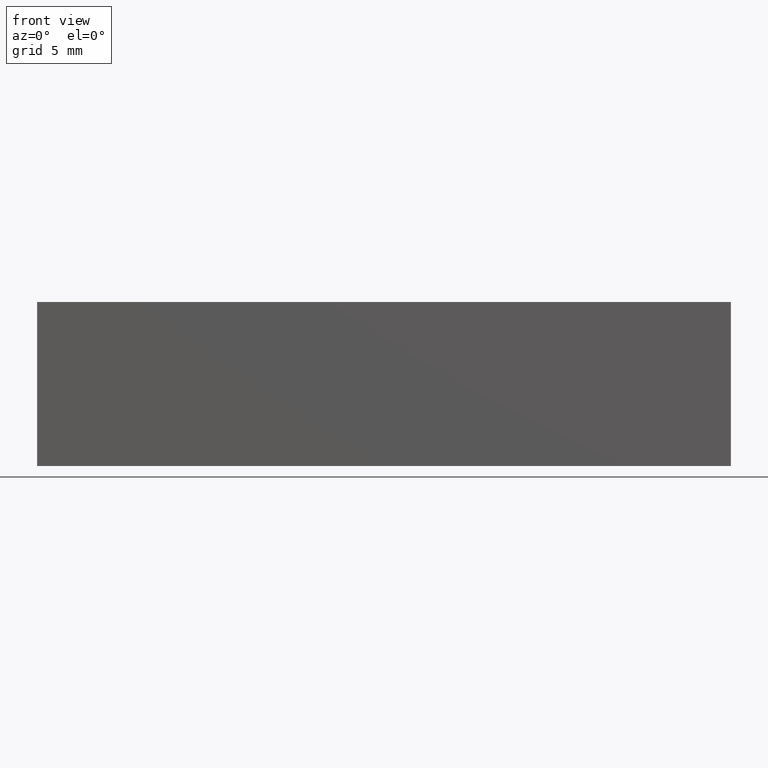
[diagram: clean part render]
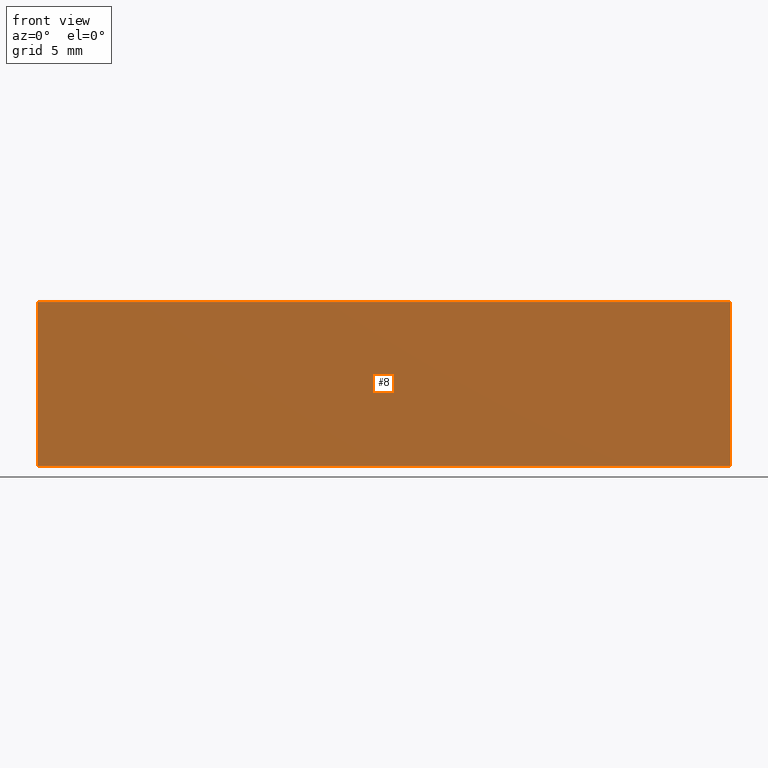
[diagram: same view with one face highlighted and labeled with its STEP entity id]
A machine part, front view. The second image highlights one B-rep face of the part: STEP entity #8.
In plain terms, the highlighted planar face has unit normal (0, 1, 0).
Its self-contained STEP definition (entity closure, byte-faithful):
#8 = ADVANCED_FACE ( 'NONE', ( #40 ), #37, .F. ) ;
#17 = VERTEX_POINT ( 'NONE', #260 ) ;
#20 = LINE ( 'NONE', #58, #272 ) ;
#37 = PLANE ( 'NONE',  #304 ) ;
#40 = FACE_OUTER_BOUND ( 'NONE', #70, .T. ) ;
#48 = CARTESIAN_POINT ( 'NONE',  ( 80.64353380175877800, 49.92210381883444400, 10.00000000000000000 ) ) ;
#58 = CARTESIAN_POINT ( 'NONE',  ( 38.34353380175870300, 49.92210381883444400, 10.00000000000000000 ) ) ;
#65 = ORIENTED_EDGE ( 'NONE', *, *, #238, .F. ) ;
#67 = CARTESIAN_POINT ( 'NONE',  ( 80.64353380175877800, 49.92210381883444400, 10.00000000000000000 ) ) ;
#70 = EDGE_LOOP ( 'NONE', ( #137, #65, #310, #76 ) ) ;
#72 = CARTESIAN_POINT ( 'NONE',  ( 38.34353380175870300, 49.92210381883444400, 0.0000000000000000000 ) ) ;
#76 = ORIENTED_EDGE ( 'NONE', *, *, #80, .T. ) ;
#80 = EDGE_CURVE ( 'NONE', #17, #99, #20, .T. ) ;
#81 = VECTOR ( 'NONE', #250, 1000.000000000000000 ) ;
#82 = DIRECTION ( 'NONE',  ( -0.0000000000000000000, -0.0000000000000000000, -1.000000000000000000 ) ) ;
#95 = CARTESIAN_POINT ( 'NONE',  ( 80.64353380175877800, 49.92210381883444400, 0.0000000000000000000 ) ) ;
#98 = VECTOR ( 'NONE', #144, 1000.000000000000000 ) ;
#99 = VERTEX_POINT ( 'NONE', #217 ) ;
#102 = LINE ( 'NONE', #72, #81 ) ;
#114 = CARTESIAN_POINT ( 'NONE',  ( 38.34353380175870300, 49.92210381883444400, 10.00000000000000000 ) ) ;
#132 = VERTEX_POINT ( 'NONE', #48 ) ;
#137 = ORIENTED_EDGE ( 'NONE', *, *, #197, .T. ) ;
#142 = VERTEX_POINT ( 'NONE', #95 ) ;
#144 = DIRECTION ( 'NONE',  ( -0.0000000000000000000, -0.0000000000000000000, -1.000000000000000000 ) ) ;
#151 = VECTOR ( 'NONE', #226, 1000.000000000000000 ) ;
#194 = LINE ( 'NONE', #270, #151 ) ;
#197 = EDGE_CURVE ( 'NONE', #99, #142, #102, .T. ) ;
#202 = EDGE_CURVE ( 'NONE', #17, #132, #194, .T. ) ;
#210 = LINE ( 'NONE', #67, #98 ) ;
#214 = DIRECTION ( 'NONE',  ( 0.0000000000000000000, 1.000000000000000000, 0.0000000000000000000 ) ) ;
#217 = CARTESIAN_POINT ( 'NONE',  ( 38.34353380175870300, 49.92210381883444400, 0.0000000000000000000 ) ) ;
#226 = DIRECTION ( 'NONE',  ( 1.000000000000000000, 0.0000000000000000000, 0.0000000000000000000 ) ) ;
#238 = EDGE_CURVE ( 'NONE', #132, #142, #210, .T. ) ;
#250 = DIRECTION ( 'NONE',  ( 1.000000000000000000, 0.0000000000000000000, 0.0000000000000000000 ) ) ;
#260 = CARTESIAN_POINT ( 'NONE',  ( 38.34353380175870300, 49.92210381883444400, 10.00000000000000000 ) ) ;
#270 = CARTESIAN_POINT ( 'NONE',  ( 38.34353380175870300, 49.92210381883444400, 10.00000000000000000 ) ) ;
#272 = VECTOR ( 'NONE', #82, 1000.000000000000000 ) ;
#283 = DIRECTION ( 'NONE',  ( 0.0000000000000000000, -0.0000000000000000000, 1.000000000000000000 ) ) ;
#304 = AXIS2_PLACEMENT_3D ( 'NONE', #114, #214, #283 ) ;
#310 = ORIENTED_EDGE ( 'NONE', *, *, #202, .F. ) ;